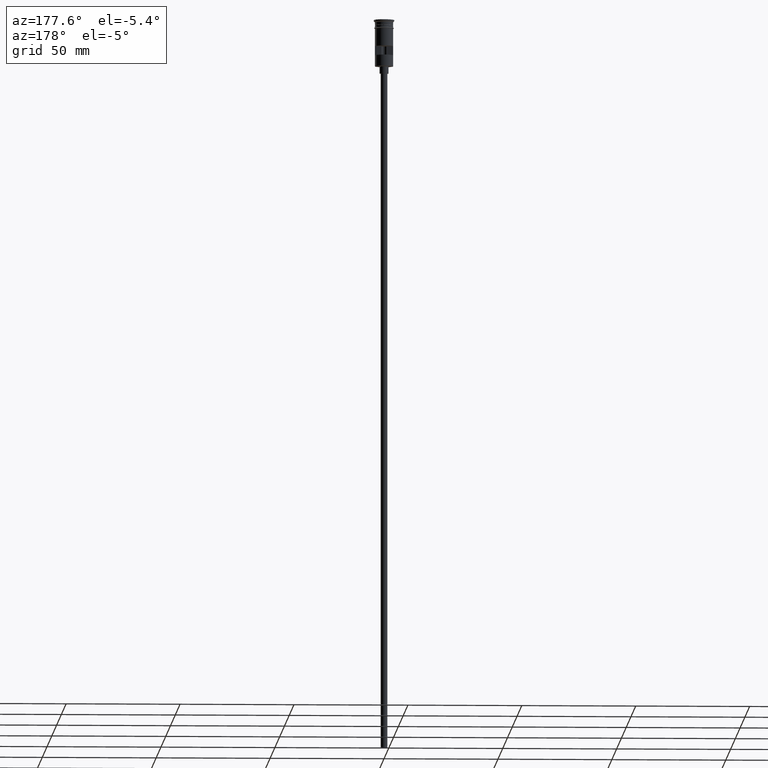
[diagram: clean part render]
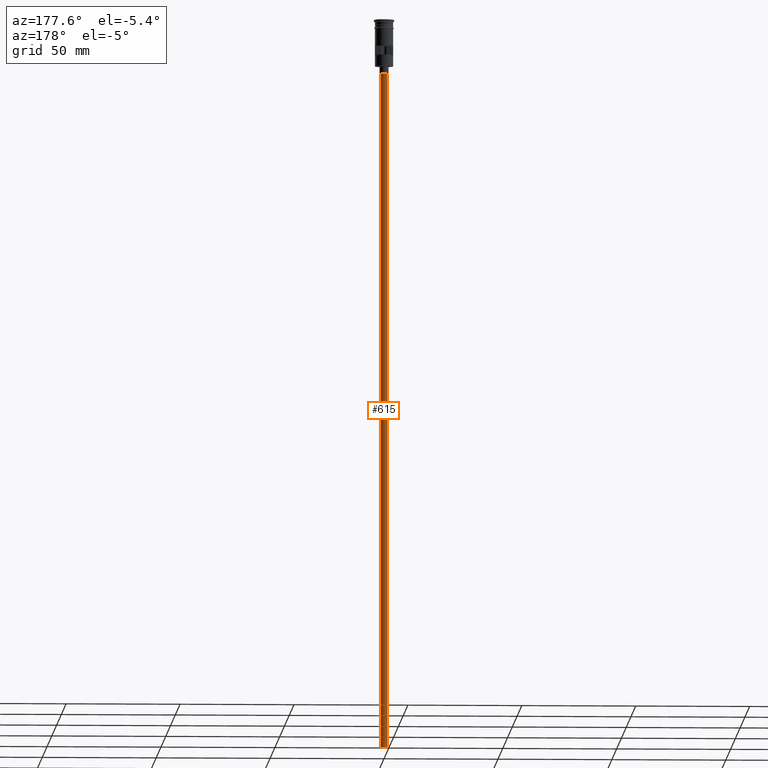
[diagram: same view with one face highlighted and labeled with its STEP entity id]
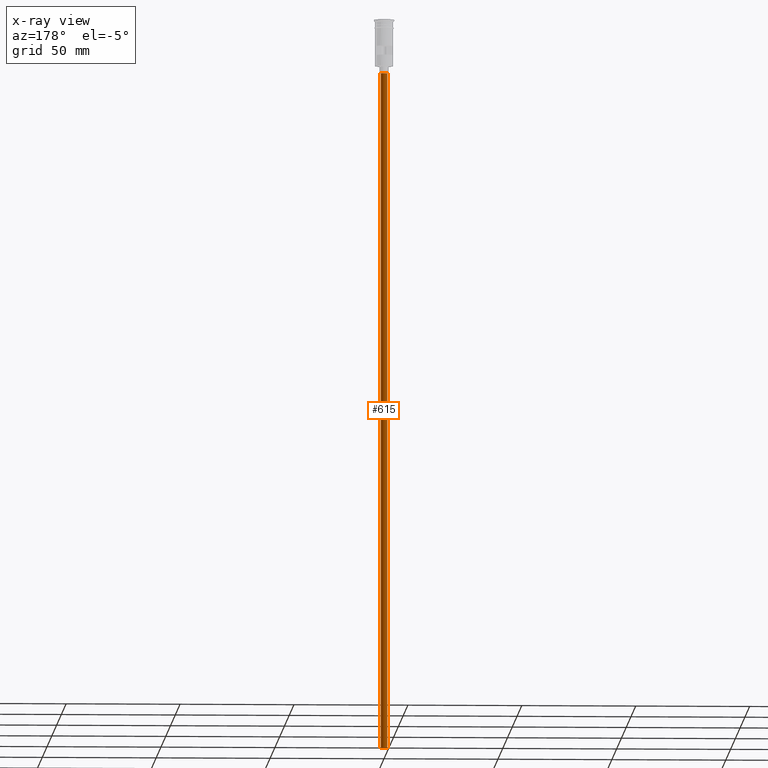
[diagram: x-ray of the same camera — body ghosted, the highlighted face saturated]
A machine part, auxiliary view. The second image highlights one B-rep face of the part: STEP entity #615.
The next image is the same camera in x-ray: the body ghosted, the highlighted face saturated — about 0% of this face is hidden behind the body in this view.
In plain terms, the highlighted cylindrical surface (edge-blend (fillet) strip) has radius 1.5 mm, axis along (-0, -0, 1).
Its self-contained STEP definition (entity closure, byte-faithful):
#5 = DIRECTION ( 'NONE',  ( -1.000000000000000000, 0.000000000000000000, 0.000000000000000000 ) ) ;
#57 = VERTEX_POINT ( 'NONE', #761 ) ;
#78 = VECTOR ( 'NONE', #1116, 1000.000000000000000 ) ;
#93 = DIRECTION ( 'NONE',  ( -1.000000000000000000, 0.000000000000000000, 0.000000000000000000 ) ) ;
#107 = CARTESIAN_POINT ( 'NONE',  ( 1.500000000000000222, 0.000000000000000000, -320.5000000000000000 ) ) ;
#128 = ORIENTED_EDGE ( 'NONE', *, *, #1489, .T. ) ;
#152 = AXIS2_PLACEMENT_3D ( 'NONE', #954, #1406, #93 ) ;
#154 = DIRECTION ( 'NONE',  ( 0.000000000000000000, 0.000000000000000000, -1.000000000000000000 ) ) ;
#244 = VERTEX_POINT ( 'NONE', #310 ) ;
#274 = FACE_OUTER_BOUND ( 'NONE', #1131, .T. ) ;
#310 = CARTESIAN_POINT ( 'NONE',  ( 1.500000000000000222, 0.000000000000000000, -23.49999999999999645 ) ) ;
#326 = CARTESIAN_POINT ( 'NONE',  ( -1.500000000000000222, 1.836970198721030181E-16, -320.5000000000000000 ) ) ;
#327 = EDGE_CURVE ( 'NONE', #57, #244, #965, .T. ) ;
#433 = VECTOR ( 'NONE', #711, 1000.000000000000000 ) ;
#501 = ORIENTED_EDGE ( 'NONE', *, *, #327, .F. ) ;
#506 = ORIENTED_EDGE ( 'NONE', *, *, #1184, .F. ) ;
#526 = LINE ( 'NONE', #1016, #78 ) ;
#615 = ADVANCED_FACE ( 'NONE', ( #274 ), #1042, .T. ) ;
#661 = CARTESIAN_POINT ( 'NONE',  ( 0.000000000000000000, 0.000000000000000000, -320.5000000000000000 ) ) ;
#671 = DIRECTION ( 'NONE',  ( -0.000000000000000000, -0.000000000000000000, 1.000000000000000000 ) ) ;
#711 = DIRECTION ( 'NONE',  ( -0.000000000000000000, -0.000000000000000000, 1.000000000000000000 ) ) ;
#761 = CARTESIAN_POINT ( 'NONE',  ( 1.500000000000000222, 0.000000000000000000, -320.5000000000000000 ) ) ;
#769 = CARTESIAN_POINT ( 'NONE',  ( -1.500000000000000222, 1.836970198721030181E-16, -23.49999999999999645 ) ) ;
#954 = CARTESIAN_POINT ( 'NONE',  ( 0.000000000000000000, 0.000000000000000000, -320.5000000000000000 ) ) ;
#965 = LINE ( 'NONE', #107, #433 ) ;
#976 = CIRCLE ( 'NONE', #152, 1.500000000000000222 ) ;
#1007 = VERTEX_POINT ( 'NONE', #769 ) ;
#1008 = ORIENTED_EDGE ( 'NONE', *, *, #1590, .T. ) ;
#1016 = CARTESIAN_POINT ( 'NONE',  ( -1.500000000000000222, 1.836970198721030181E-16, -320.5000000000000000 ) ) ;
#1042 = CYLINDRICAL_SURFACE ( 'NONE', #1201, 1.500000000000000222 ) ;
#1116 = DIRECTION ( 'NONE',  ( -0.000000000000000000, -0.000000000000000000, 1.000000000000000000 ) ) ;
#1131 = EDGE_LOOP ( 'NONE', ( #506, #1008, #128, #501 ) ) ;
#1138 = DIRECTION ( 'NONE',  ( 1.000000000000000000, 0.000000000000000000, 0.000000000000000000 ) ) ;
#1155 = CIRCLE ( 'NONE', #1231, 1.500000000000000222 ) ;
#1184 = EDGE_CURVE ( 'NONE', #1274, #57, #976, .T. ) ;
#1201 = AXIS2_PLACEMENT_3D ( 'NONE', #661, #671, #1138 ) ;
#1231 = AXIS2_PLACEMENT_3D ( 'NONE', #1281, #154, #5 ) ;
#1274 = VERTEX_POINT ( 'NONE', #326 ) ;
#1281 = CARTESIAN_POINT ( 'NONE',  ( 0.000000000000000000, 0.000000000000000000, -23.49999999999999645 ) ) ;
#1406 = DIRECTION ( 'NONE',  ( 0.000000000000000000, 0.000000000000000000, -1.000000000000000000 ) ) ;
#1489 = EDGE_CURVE ( 'NONE', #1007, #244, #1155, .T. ) ;
#1590 = EDGE_CURVE ( 'NONE', #1274, #1007, #526, .T. ) ;